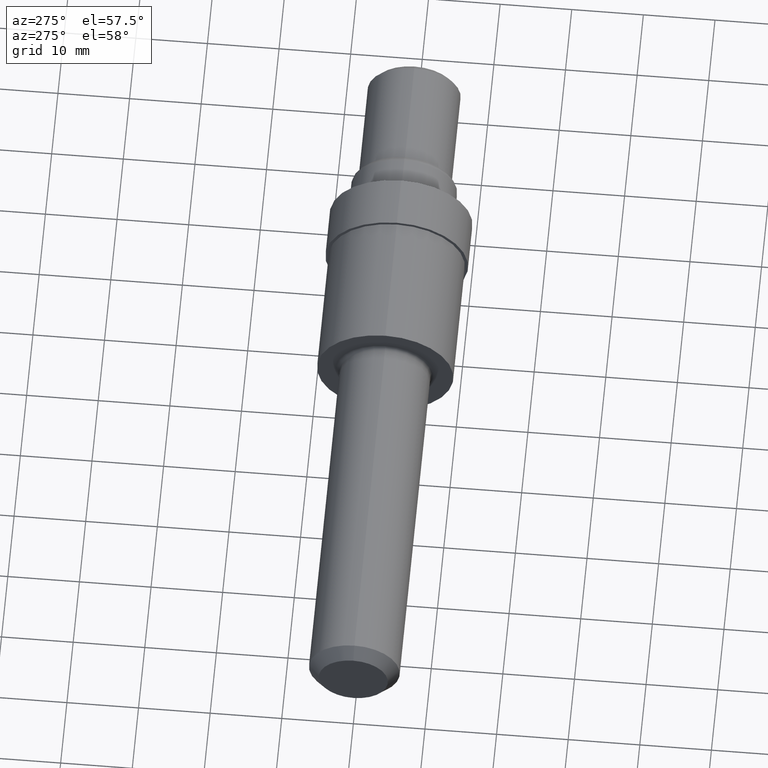
[diagram: clean part render]
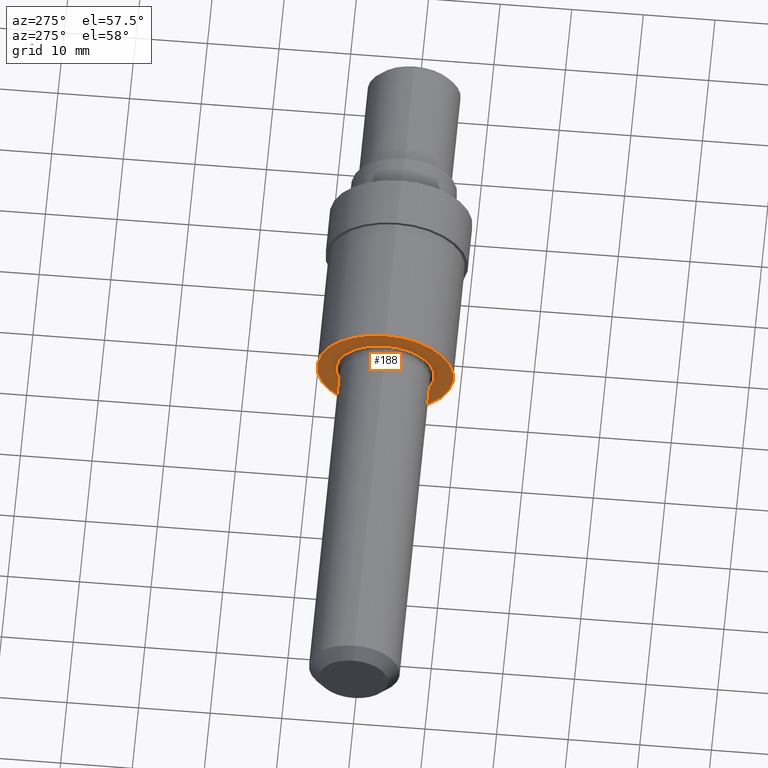
[diagram: same view with one face highlighted and labeled with its STEP entity id]
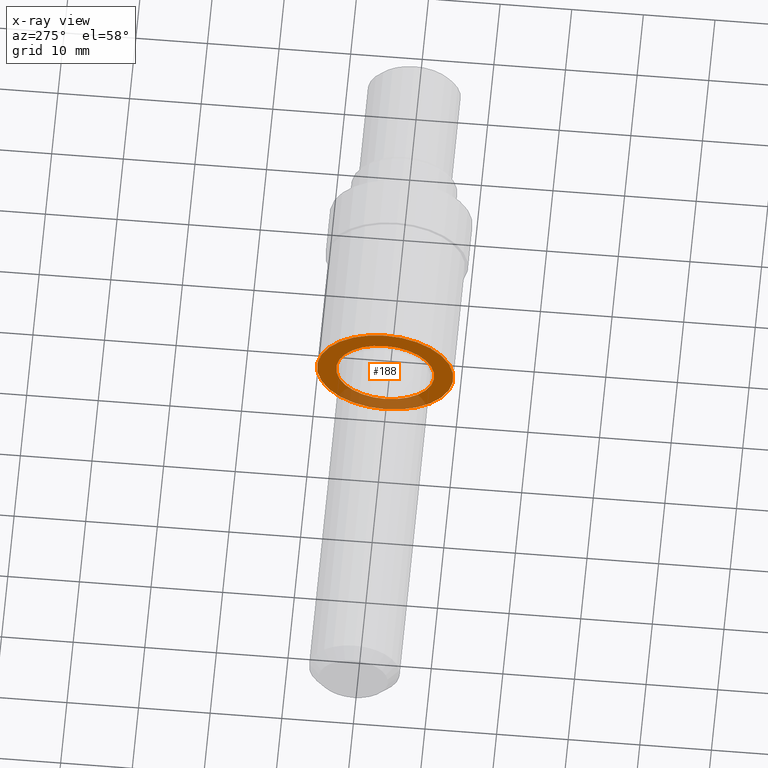
[diagram: x-ray of the same camera — body ghosted, the highlighted face saturated]
A machine part, auxiliary view. The second image highlights one B-rep face of the part: STEP entity #188.
The next image is the same camera in x-ray: the body ghosted, the highlighted face saturated — about 23% of this face is hidden behind the body in this view.
In plain terms, the highlighted planar face has unit normal (1, 0, 0).
Its self-contained STEP definition (entity closure, byte-faithful):
#37 = DIRECTION ( 'NONE',  ( -1.000000000000000000, -0.0000000000000000000, -0.0000000000000000000 ) ) ;
#43 = DIRECTION ( 'NONE',  ( 0.0000000000000000000, 0.0000000000000000000, -1.000000000000000000 ) ) ;
#63 = CARTESIAN_POINT ( 'NONE',  ( 2.000000000000000000, 0.0000000000000000000, 0.0000000000000000000 ) ) ;
#73 = DIRECTION ( 'NONE',  ( 0.0000000000000000000, 0.0000000000000000000, 1.000000000000000000 ) ) ;
#102 = CIRCLE ( 'NONE', #157, 0.2698499999999999788 ) ;
#114 = EDGE_CURVE ( 'NONE', #351, #216, #176, .T. ) ;
#117 = FACE_OUTER_BOUND ( 'NONE', #241, .T. ) ;
#129 = FACE_BOUND ( 'NONE', #656, .T. ) ;
#137 = AXIS2_PLACEMENT_3D ( 'NONE', #364, #408, #404 ) ;
#138 = PLANE ( 'NONE',  #620 ) ;
#157 = AXIS2_PLACEMENT_3D ( 'NONE', #446, #165, #378 ) ;
#165 = DIRECTION ( 'NONE',  ( -1.000000000000000000, -0.0000000000000000000, -0.0000000000000000000 ) ) ;
#176 = CIRCLE ( 'NONE', #491, 0.3750000000000000555 ) ;
#188 = ADVANCED_FACE ( 'NONE', ( #129, #117 ), #138, .F. ) ;
#216 = VERTEX_POINT ( 'NONE', #507 ) ;
#240 = EDGE_CURVE ( 'NONE', #288, #582, #102, .T. ) ;
#241 = EDGE_LOOP ( 'NONE', ( #442, #479 ) ) ;
#287 = ORIENTED_EDGE ( 'NONE', *, *, #240, .F. ) ;
#288 = VERTEX_POINT ( 'NONE', #439 ) ;
#318 = DIRECTION ( 'NONE',  ( 0.0000000000000000000, 0.0000000000000000000, 1.000000000000000000 ) ) ;
#351 = VERTEX_POINT ( 'NONE', #593 ) ;
#364 = CARTESIAN_POINT ( 'NONE',  ( 2.000000000000000000, 0.0000000000000000000, 0.0000000000000000000 ) ) ;
#378 = DIRECTION ( 'NONE',  ( 0.0000000000000000000, 0.0000000000000000000, 1.000000000000000000 ) ) ;
#382 = CARTESIAN_POINT ( 'NONE',  ( 2.000000000000000000, 0.2698499999999999788, 0.0000000000000000000 ) ) ;
#399 = EDGE_CURVE ( 'NONE', #582, #288, #409, .T. ) ;
#404 = DIRECTION ( 'NONE',  ( 0.0000000000000000000, 0.0000000000000000000, 1.000000000000000000 ) ) ;
#405 = ORIENTED_EDGE ( 'NONE', *, *, #399, .F. ) ;
#408 = DIRECTION ( 'NONE',  ( -1.000000000000000000, -0.0000000000000000000, -0.0000000000000000000 ) ) ;
#409 = CIRCLE ( 'NONE', #137, 0.2698499999999999788 ) ;
#439 = CARTESIAN_POINT ( 'NONE',  ( 2.000000000000000000, 3.304709387499132646E-17, -0.2698499999999999788 ) ) ;
#442 = ORIENTED_EDGE ( 'NONE', *, *, #456, .T. ) ;
#444 = CARTESIAN_POINT ( 'NONE',  ( 2.000000000000000000, 0.0000000000000000000, 0.0000000000000000000 ) ) ;
#446 = CARTESIAN_POINT ( 'NONE',  ( 2.000000000000000000, 0.0000000000000000000, 0.0000000000000000000 ) ) ;
#456 = EDGE_CURVE ( 'NONE', #216, #351, #692, .T. ) ;
#479 = ORIENTED_EDGE ( 'NONE', *, *, #114, .T. ) ;
#491 = AXIS2_PLACEMENT_3D ( 'NONE', #444, #550, #318 ) ;
#507 = CARTESIAN_POINT ( 'NONE',  ( 2.000000000000000000, 0.0000000000000000000, 0.3750000000000000555 ) ) ;
#544 = AXIS2_PLACEMENT_3D ( 'NONE', #63, #37, #73 ) ;
#550 = DIRECTION ( 'NONE',  ( -1.000000000000000000, -0.0000000000000000000, -0.0000000000000000000 ) ) ;
#582 = VERTEX_POINT ( 'NONE', #662 ) ;
#593 = CARTESIAN_POINT ( 'NONE',  ( 2.000000000000000000, 4.592425496802575451E-17, -0.3750000000000000555 ) ) ;
#620 = AXIS2_PLACEMENT_3D ( 'NONE', #382, #660, #43 ) ;
#656 = EDGE_LOOP ( 'NONE', ( #405, #287 ) ) ;
#660 = DIRECTION ( 'NONE',  ( 1.000000000000000000, 0.0000000000000000000, 0.0000000000000000000 ) ) ;
#662 = CARTESIAN_POINT ( 'NONE',  ( 2.000000000000000000, 0.0000000000000000000, 0.2698499999999999788 ) ) ;
#692 = CIRCLE ( 'NONE', #544, 0.3750000000000000555 ) ;